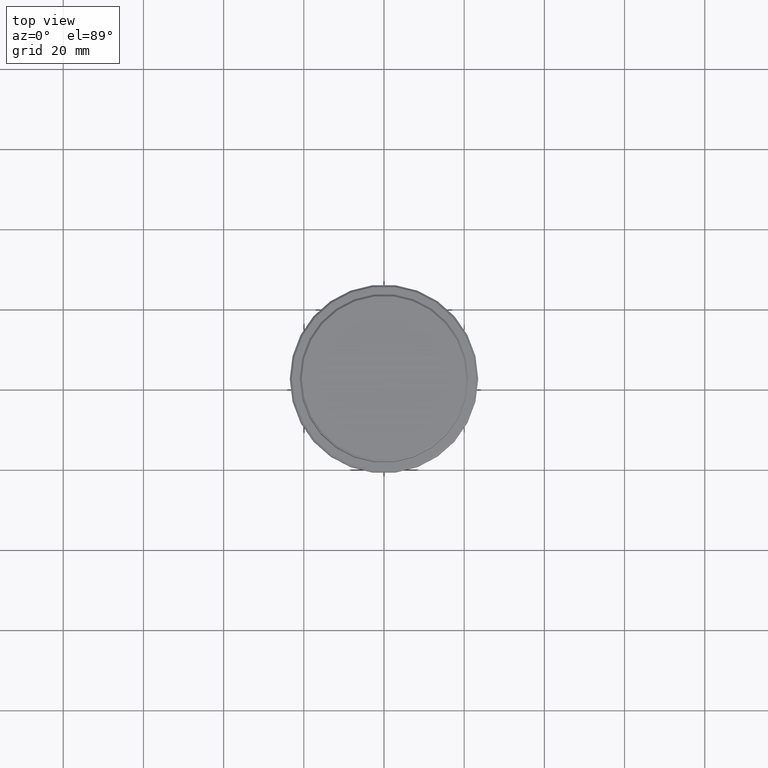
[diagram: clean part render]
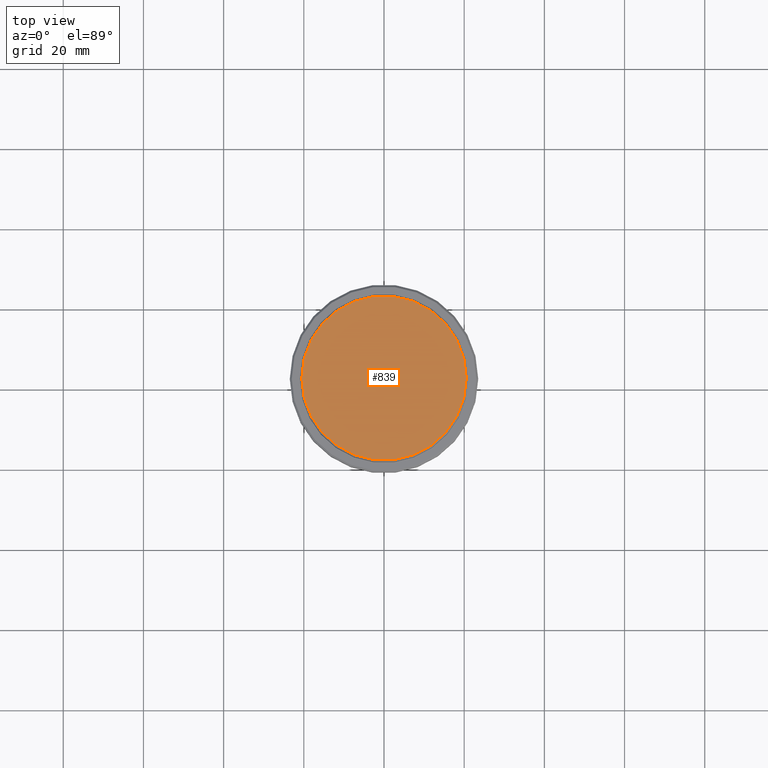
[diagram: same view with one face highlighted and labeled with its STEP entity id]
A machine part, top view. The second image highlights one B-rep face of the part: STEP entity #839.
In plain terms, the highlighted planar face has unit normal (0, -0, 1).
Its self-contained STEP definition (entity closure, byte-faithful):
#120 = VERTEX_POINT ( 'NONE', #664 ) ;
#184 = DIRECTION ( 'NONE',  ( 1.000000000000000000, 0.000000000000000000, 0.000000000000000000 ) ) ;
#210 = DIRECTION ( 'NONE',  ( 1.000000000000000000, 0.000000000000000000, 0.000000000000000000 ) ) ;
#346 = DIRECTION ( 'NONE',  ( 0.000000000000000000, -0.000000000000000000, 1.000000000000000000 ) ) ;
#352 = PLANE ( 'NONE',  #386 ) ;
#386 = AXIS2_PLACEMENT_3D ( 'NONE', #1131, #346, #801 ) ;
#540 = ORIENTED_EDGE ( 'NONE', *, *, #1217, .T. ) ;
#599 = EDGE_LOOP ( 'NONE', ( #1346, #540 ) ) ;
#664 = CARTESIAN_POINT ( 'NONE',  ( -20.49999999999998934, 0.000000000000000000, 0.000000000000000000 ) ) ;
#701 = FACE_OUTER_BOUND ( 'NONE', #599, .T. ) ;
#801 = DIRECTION ( 'NONE',  ( 1.000000000000000000, 0.000000000000000000, 0.000000000000000000 ) ) ;
#822 = AXIS2_PLACEMENT_3D ( 'NONE', #852, #1288, #210 ) ;
#839 = ADVANCED_FACE ( 'NONE', ( #701 ), #352, .T. ) ;
#852 = CARTESIAN_POINT ( 'NONE',  ( 0.000000000000000000, 0.000000000000000000, 0.000000000000000000 ) ) ;
#867 = CIRCLE ( 'NONE', #1049, 20.49999999999998934 ) ;
#924 = CARTESIAN_POINT ( 'NONE',  ( 20.49999999999998934, 2.541142108230757480E-15, 0.000000000000000000 ) ) ;
#1035 = CARTESIAN_POINT ( 'NONE',  ( 0.000000000000000000, 0.000000000000000000, 0.000000000000000000 ) ) ;
#1049 = AXIS2_PLACEMENT_3D ( 'NONE', #1035, #1073, #184 ) ;
#1073 = DIRECTION ( 'NONE',  ( -0.000000000000000000, -0.000000000000000000, 1.000000000000000000 ) ) ;
#1081 = VERTEX_POINT ( 'NONE', #924 ) ;
#1131 = CARTESIAN_POINT ( 'NONE',  ( 0.000000000000000000, 0.000000000000000000, 0.000000000000000000 ) ) ;
#1140 = CIRCLE ( 'NONE', #822, 20.49999999999998934 ) ;
#1163 = EDGE_CURVE ( 'NONE', #120, #1081, #867, .T. ) ;
#1217 = EDGE_CURVE ( 'NONE', #1081, #120, #1140, .T. ) ;
#1288 = DIRECTION ( 'NONE',  ( -0.000000000000000000, -0.000000000000000000, 1.000000000000000000 ) ) ;
#1346 = ORIENTED_EDGE ( 'NONE', *, *, #1163, .T. ) ;